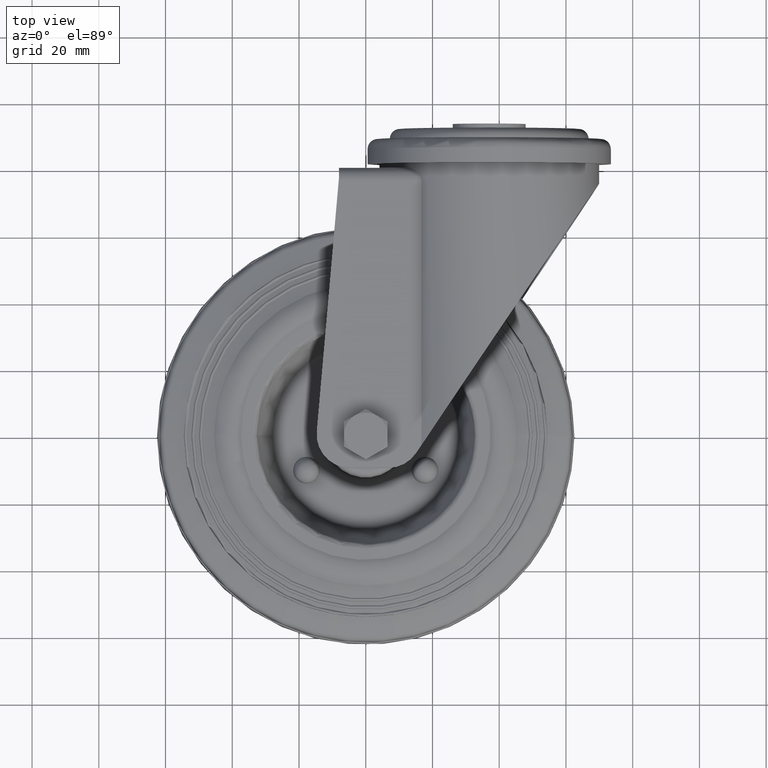
[diagram: clean part render]
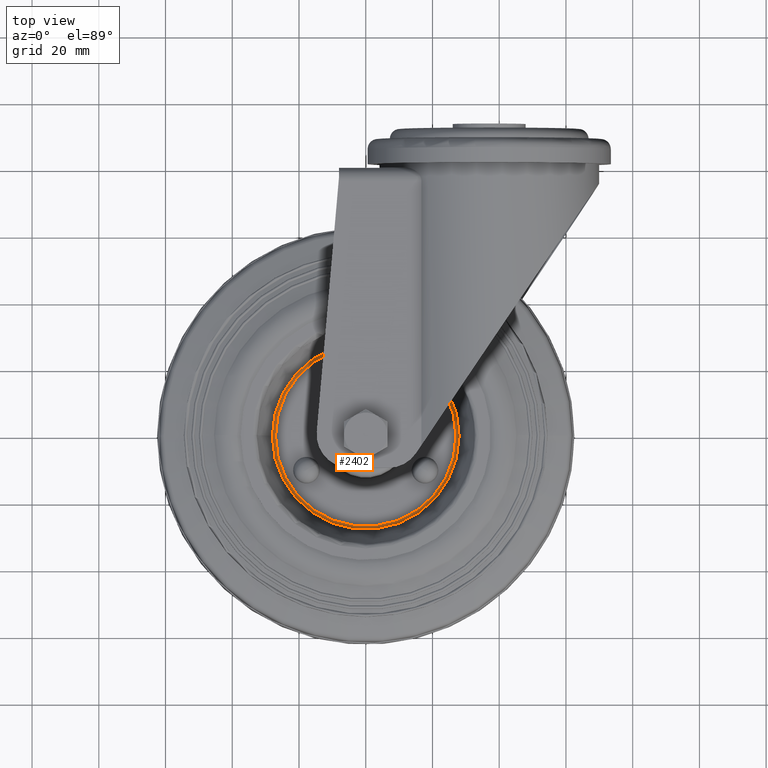
[diagram: same view with one face highlighted and labeled with its STEP entity id]
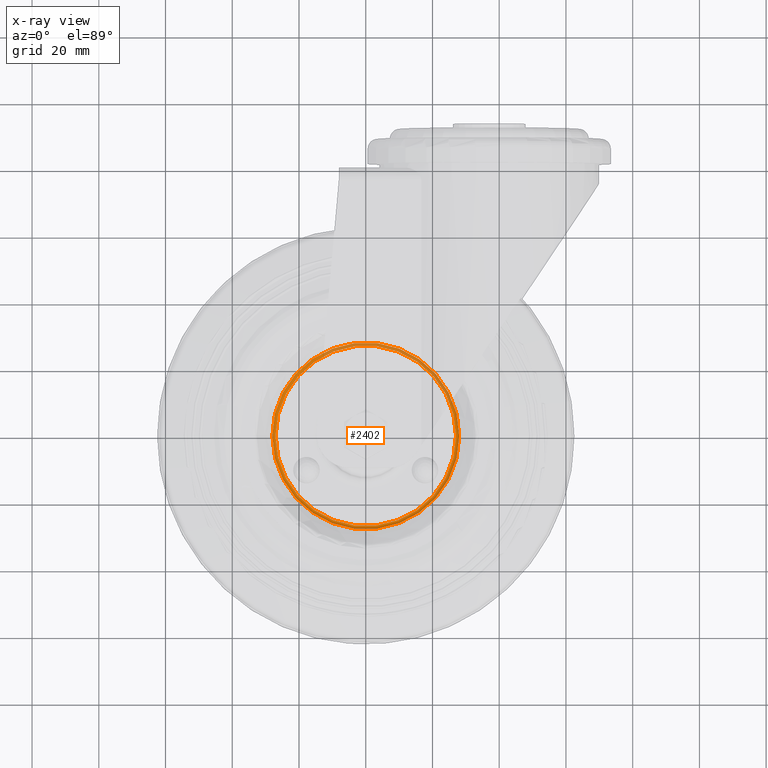
[diagram: x-ray of the same camera — body ghosted, the highlighted face saturated]
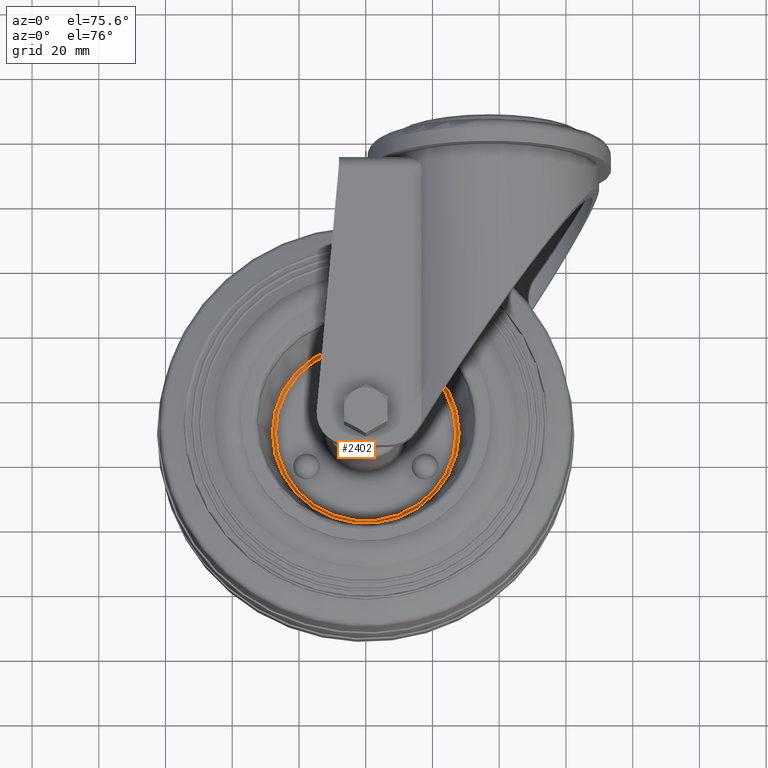
[diagram: same view with one face highlighted and labeled with its STEP entity id]
A machine part, top view. The second image highlights one B-rep face of the part: STEP entity #2402.
The next image is the same camera in x-ray: the body ghosted, the highlighted face saturated — about 27% of this face is hidden behind the body in this view.
A second angle (auxiliary view) of the same face is appended — the face is thin or edge-on in the first view.
In plain terms, the highlighted toroidal blend (fillet) surface has major radius 27.05 mm and minor (blend) radius 1 mm.
Its self-contained STEP definition (entity closure, byte-faithful):
#43=TOROIDAL_SURFACE('',#2836,27.0499809046163,1.);
#371=CIRCLE('',#2801,27.0499809046163);
#392=CIRCLE('',#2837,1.);
#393=CIRCLE('',#2838,27.9896735254023);
#577=FACE_OUTER_BOUND('',#760,.T.);
#760=EDGE_LOOP('',(#2032,#2033,#2034,#2035));
#1166=VERTEX_POINT('',#4317);
#1185=VERTEX_POINT('',#4378);
#1451=EDGE_CURVE('',#1166,#1166,#371,.T.);
#1478=EDGE_CURVE('',#1166,#1185,#392,.T.);
#1479=EDGE_CURVE('',#1185,#1185,#393,.T.);
#2032=ORIENTED_EDGE('',*,*,#1451,.F.);
#2033=ORIENTED_EDGE('',*,*,#1478,.T.);
#2034=ORIENTED_EDGE('',*,*,#1479,.T.);
#2035=ORIENTED_EDGE('',*,*,#1478,.F.);
#2402=ADVANCED_FACE('',(#577),#43,.F.);
#2801=AXIS2_PLACEMENT_3D('',#4318,#3407,#3408);
#2836=AXIS2_PLACEMENT_3D('',#4377,#3483,#3484);
#2837=AXIS2_PLACEMENT_3D('',#4379,#3485,#3486);
#2838=AXIS2_PLACEMENT_3D('',#4380,#3487,#3488);
#3407=DIRECTION('center_axis',(1.,0.,0.));
#3408=DIRECTION('ref_axis',(0.,0.,-1.));
#3483=DIRECTION('center_axis',(1.,0.,0.));
#3484=DIRECTION('ref_axis',(0.,0.,-1.));
#3485=DIRECTION('center_axis',(0.,1.,1.22464679914735E-16));
#3486=DIRECTION('ref_axis',(0.,-1.22464679914735E-16,1.));
#3487=DIRECTION('center_axis',(1.,0.,0.));
#3488=DIRECTION('ref_axis',(0.,0.,-1.));
#4317=CARTESIAN_POINT('',(23.2,-3.31266725318354E-15,27.0499809046163));
#4318=CARTESIAN_POINT('Origin',(23.2,0.,0.));
#4377=CARTESIAN_POINT('Origin',(24.2,0.,0.));
#4378=CARTESIAN_POINT('',(23.8579798566743,-3.42774640920633E-15,27.9896735254023));
#4379=CARTESIAN_POINT('Origin',(24.2,-3.31266725318354E-15,27.0499809046163));
#4380=CARTESIAN_POINT('Origin',(23.8579798566743,0.,0.));